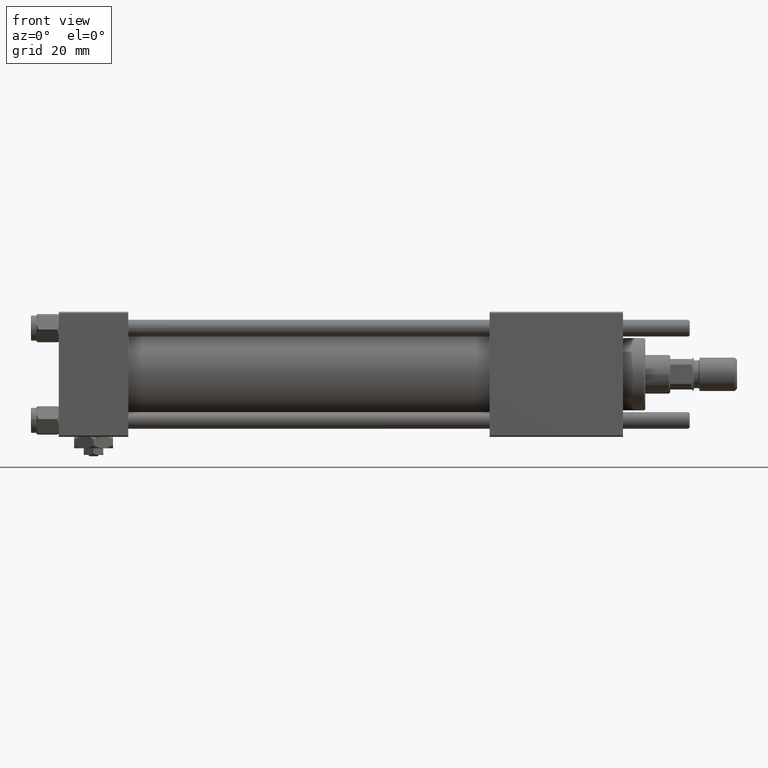
[diagram: clean part render]
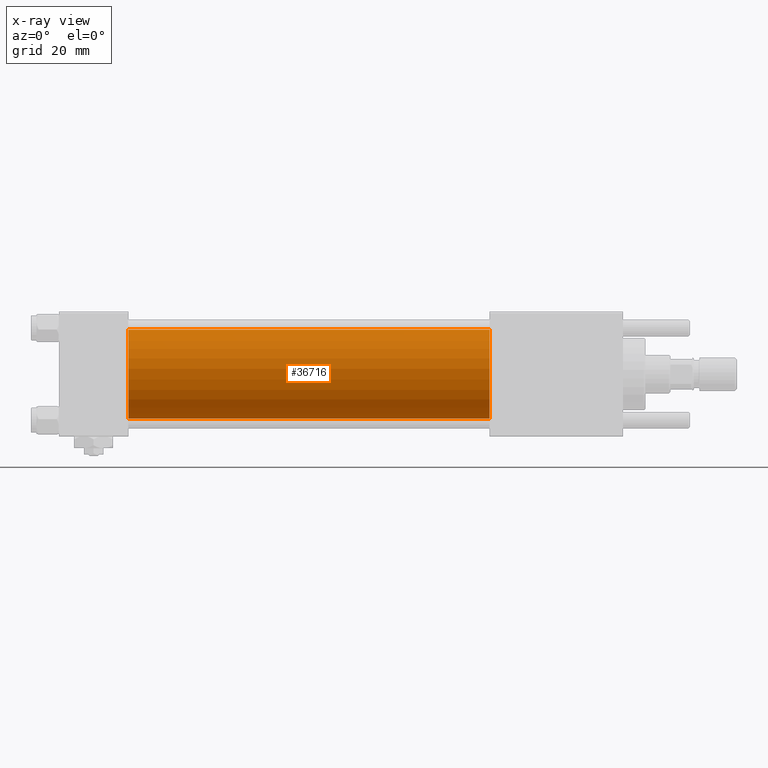
[diagram: x-ray — body ghosted, one internal face saturated and labeled with its STEP entity id]
A machine part, front view, then the same camera in x-ray: the body is ghosted and one INTERNAL B-rep face — a face not visible from any outside direction — is saturated and labeled: STEP entity #36716.
In plain terms, the highlighted cylindrical surface (partial cylindrical patch) has radius 16 mm, axis along (-1, -0, -0).
Its self-contained STEP definition (entity closure, byte-faithful):
#518 = VERTEX_POINT ( 'NONE', #38100 ) ;
#4529 = CARTESIAN_POINT ( 'NONE',  ( 155.0000000000000000, -6.426503353294456087E-16, -16.00000000000000000 ) ) ;
#7259 = CARTESIAN_POINT ( 'NONE',  ( 155.0000000000000000, -2.602085213965210642E-15, 0.000000000000000000 ) ) ;
#8779 = VERTEX_POINT ( 'NONE', #45079 ) ;
#9213 = LINE ( 'NONE', #36948, #45069 ) ;
#9932 = EDGE_LOOP ( 'NONE', ( #23475, #20509, #31614, #38065 ) ) ;
#9961 = DIRECTION ( 'NONE',  ( 0.000000000000000000, 0.000000000000000000, 1.000000000000000000 ) ) ;
#10100 = DIRECTION ( 'NONE',  ( -1.000000000000000000, -0.000000000000000000, -0.000000000000000000 ) ) ;
#11638 = VERTEX_POINT ( 'NONE', #43753 ) ;
#11667 = VERTEX_POINT ( 'NONE', #28945 ) ;
#13950 = EDGE_CURVE ( 'NONE', #518, #11638, #29525, .T. ) ;
#17754 = DIRECTION ( 'NONE',  ( -1.000000000000000000, -0.000000000000000000, -0.000000000000000000 ) ) ;
#19820 = EDGE_CURVE ( 'NONE', #8779, #11667, #42151, .T. ) ;
#20509 = ORIENTED_EDGE ( 'NONE', *, *, #27068, .T. ) ;
#21204 = AXIS2_PLACEMENT_3D ( 'NONE', #7259, #25754, #43639 ) ;
#22435 = DIRECTION ( 'NONE',  ( 1.000000000000000000, 0.000000000000000000, 0.000000000000000000 ) ) ;
#23475 = ORIENTED_EDGE ( 'NONE', *, *, #19820, .T. ) ;
#25754 = DIRECTION ( 'NONE',  ( 1.000000000000000000, 0.000000000000000000, 0.000000000000000000 ) ) ;
#26330 = EDGE_CURVE ( 'NONE', #8779, #518, #9213, .T. ) ;
#27068 = EDGE_CURVE ( 'NONE', #11667, #11638, #54649, .T. ) ;
#27850 = CYLINDRICAL_SURFACE ( 'NONE', #38718, 16.00000000000000000 ) ;
#28945 = CARTESIAN_POINT ( 'NONE',  ( 155.0000000000000000, -6.426503353294456087E-16, -16.00000000000000000 ) ) ;
#29525 = CIRCLE ( 'NONE', #41012, 16.00000000000000000 ) ;
#31614 = ORIENTED_EDGE ( 'NONE', *, *, #13950, .F. ) ;
#36162 = DIRECTION ( 'NONE',  ( 0.000000000000000000, 0.000000000000000000, -1.000000000000000000 ) ) ;
#36716 = ADVANCED_FACE ( 'NONE', ( #50534 ), #27850, .F. ) ;
#36948 = CARTESIAN_POINT ( 'NONE',  ( 155.0000000000000000, -2.602085213965210642E-15, 16.00000000000000000 ) ) ;
#38065 = ORIENTED_EDGE ( 'NONE', *, *, #26330, .F. ) ;
#38100 = CARTESIAN_POINT ( 'NONE',  ( 25.00000000000000000, -2.602085213965210642E-15, 16.00000000000000000 ) ) ;
#38718 = AXIS2_PLACEMENT_3D ( 'NONE', #45753, #17754, #9961 ) ;
#40050 = DIRECTION ( 'NONE',  ( -1.000000000000000000, -0.000000000000000000, -0.000000000000000000 ) ) ;
#41012 = AXIS2_PLACEMENT_3D ( 'NONE', #45395, #22435, #36162 ) ;
#42151 = CIRCLE ( 'NONE', #21204, 16.00000000000000000 ) ;
#43639 = DIRECTION ( 'NONE',  ( 0.000000000000000000, 0.000000000000000000, -1.000000000000000000 ) ) ;
#43753 = CARTESIAN_POINT ( 'NONE',  ( 25.00000000000000000, -6.426503353294456087E-16, -16.00000000000000000 ) ) ;
#45069 = VECTOR ( 'NONE', #10100, 1000.000000000000000 ) ;
#45079 = CARTESIAN_POINT ( 'NONE',  ( 155.0000000000000000, -2.602085213965210642E-15, 16.00000000000000000 ) ) ;
#45395 = CARTESIAN_POINT ( 'NONE',  ( 25.00000000000000000, -2.602085213965210642E-15, 0.000000000000000000 ) ) ;
#45753 = CARTESIAN_POINT ( 'NONE',  ( 155.0000000000000000, -2.602085213965210642E-15, 0.000000000000000000 ) ) ;
#49848 = VECTOR ( 'NONE', #40050, 1000.000000000000000 ) ;
#50534 = FACE_OUTER_BOUND ( 'NONE', #9932, .T. ) ;
#54649 = LINE ( 'NONE', #4529, #49848 ) ;